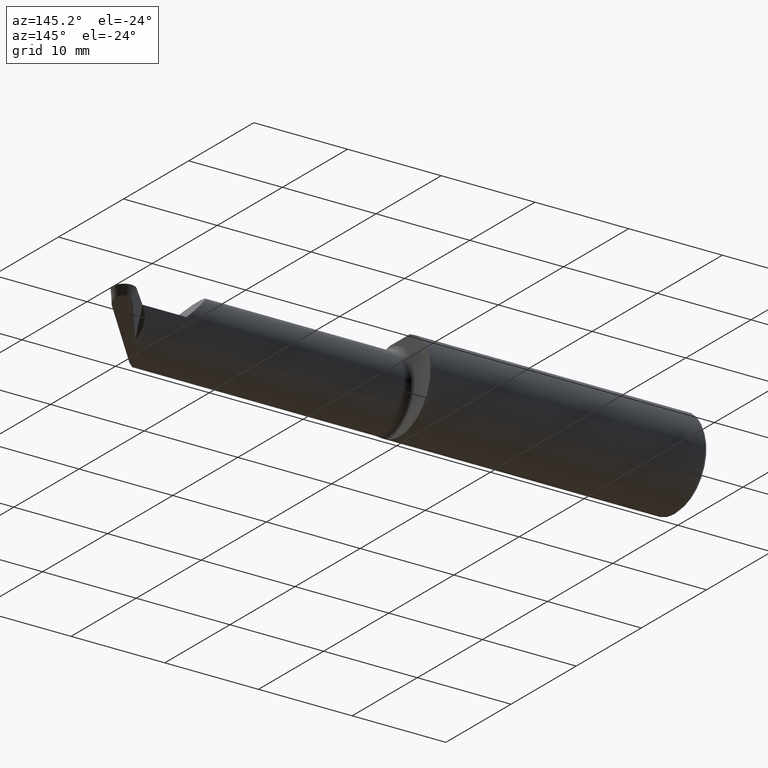
[diagram: clean part render]
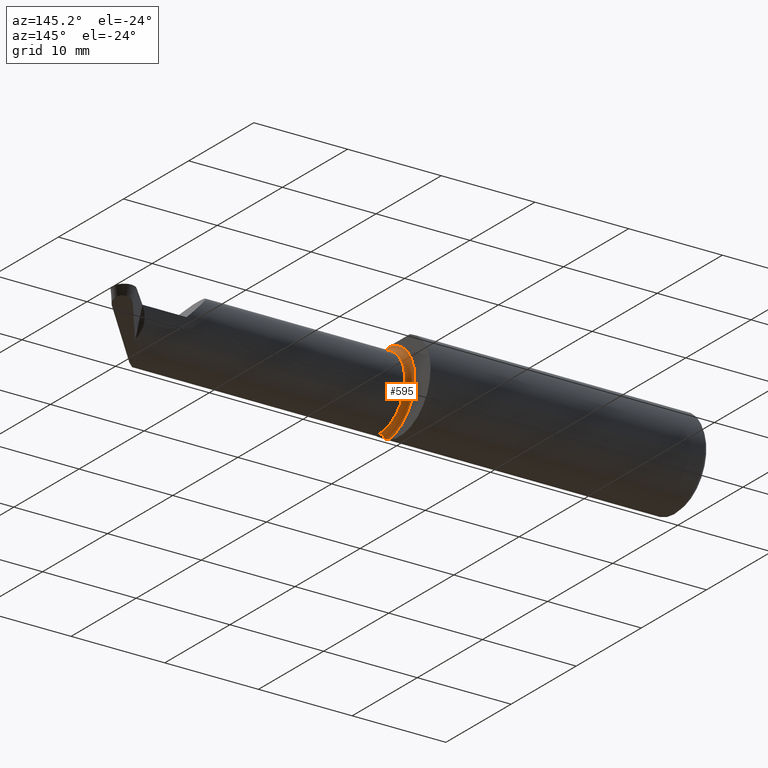
[diagram: same view with one face highlighted and labeled with its STEP entity id]
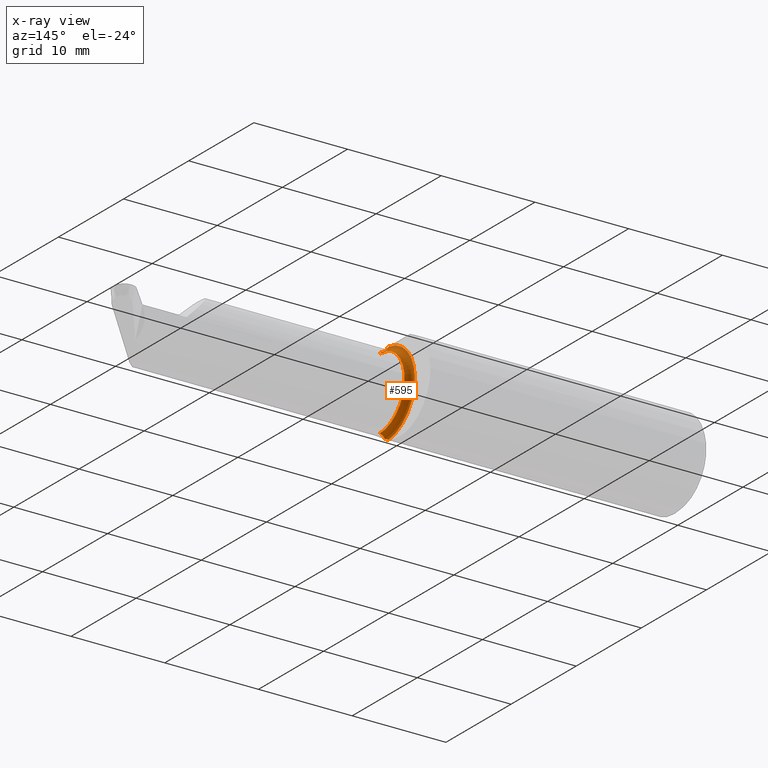
[diagram: x-ray of the same camera — body ghosted, the highlighted face saturated]
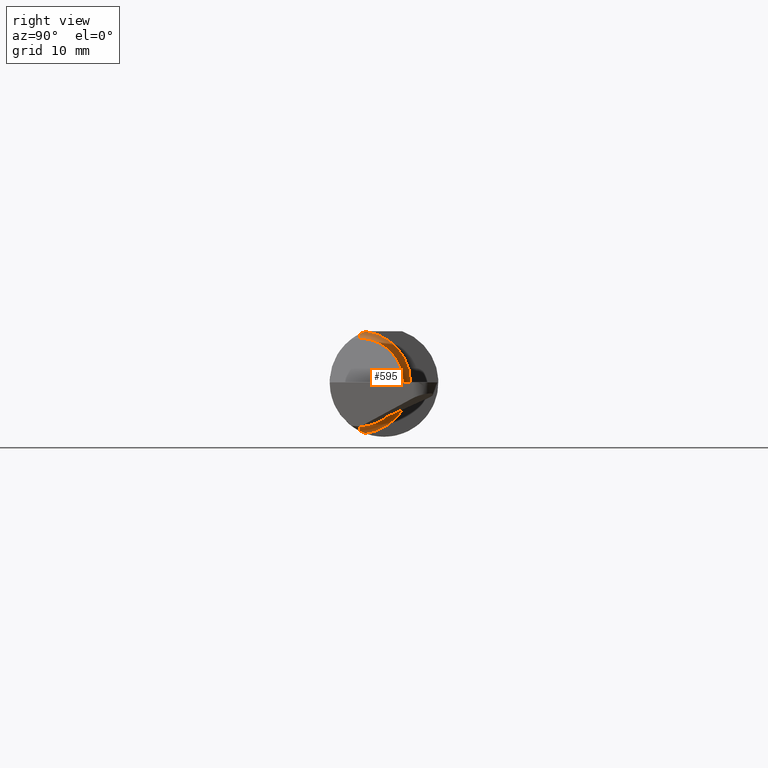
[diagram: same view with one face highlighted and labeled with its STEP entity id]
A machine part, auxiliary view. The second image highlights one B-rep face of the part: STEP entity #595.
The next image is the same camera in x-ray: the body ghosted, the highlighted face saturated — about 0% of this face is hidden behind the body in this view.
A second angle (right view) of the same face is appended — the face is thin or edge-on in the first view.
In plain terms, the highlighted toroidal blend (fillet) surface has major radius 4.4958 mm and minor (blend) radius 0.635 mm.
Its self-contained STEP definition (entity closure, byte-faithful):
#42 = CARTESIAN_POINT ( 'NONE',  ( 1.169680673000416116, -0.07878962450278861884, -0.1701367906434538557 ) ) ;
#71 = EDGE_CURVE ( 'NONE', #81, #769, #550, .T. ) ;
#81 = VERTEX_POINT ( 'NONE', #182 ) ;
#103 = VERTEX_POINT ( 'NONE', #620 ) ;
#106 = AXIS2_PLACEMENT_3D ( 'NONE', #646, #265, #451 ) ;
#153 = ORIENTED_EDGE ( 'NONE', *, *, #563, .T. ) ;
#161 = DIRECTION ( 'NONE',  ( 0.000000000000000000, 0.000000000000000000, -1.000000000000000000 ) ) ;
#167 = DIRECTION ( 'NONE',  ( -1.000000000000000000, -0.000000000000000000, -0.000000000000000000 ) ) ;
#176 = DIRECTION ( 'NONE',  ( -0.000000000000000000, 1.000000000000000000, 1.224646799147353207E-16 ) ) ;
#180 = CARTESIAN_POINT ( 'NONE',  ( 1.169000000000000039, -0.06476652021089757127, -0.1757990908957477727 ) ) ;
#182 = CARTESIAN_POINT ( 'NONE',  ( 1.171184626225752590, -0.08534999999999996756, -0.1667794951425384531 ) ) ;
#186 = ORIENTED_EDGE ( 'NONE', *, *, #449, .T. ) ;
#193 = AXIS2_PLACEMENT_3D ( 'NONE', #342, #233, #732 ) ;
#194 = AXIS2_PLACEMENT_3D ( 'NONE', #372, #176, #685 ) ;
#213 = B_SPLINE_CURVE_WITH_KNOTS ( 'NONE', 3,
 ( #572, #578, #770, #336 ),
 .UNSPECIFIED., .F., .F.,
 ( 4, 4 ),
 ( 4.102419206629668344E-05, 0.0006141256517407879447 ),
 .UNSPECIFIED. ) ;
#228 = B_SPLINE_CURVE_WITH_KNOTS ( 'NONE', 3,
 ( #733, #42, #305, #741 ),
 .UNSPECIFIED., .F., .F.,
 ( 4, 4 ),
 ( 0.001081723733566378361, 0.001661700673542926190 ),
 .UNSPECIFIED. ) ;
#233 = DIRECTION ( 'NONE',  ( -1.000000000000000000, -0.000000000000000000, -0.000000000000000000 ) ) ;
#265 = DIRECTION ( 'NONE',  ( -1.000000000000000000, -0.000000000000000000, -0.000000000000000000 ) ) ;
#268 = VERTEX_POINT ( 'NONE', #658 ) ;
#300 = CARTESIAN_POINT ( 'NONE',  ( 1.193999999999999950, -0.08534999999999996756, -0.1519999999999993856 ) ) ;
#304 = CARTESIAN_POINT ( 'NONE',  ( 1.193999999999999950, -0.08534999999999996756, 0.1769999999999993801 ) ) ;
#305 = CARTESIAN_POINT ( 'NONE',  ( 1.169000000000000039, -0.07189143372580585056, -0.1731741862229593809 ) ) ;
#324 = ORIENTED_EDGE ( 'NONE', *, *, #689, .T. ) ;
#336 = CARTESIAN_POINT ( 'NONE',  ( 1.171184626225752590, -0.08534999999999996756, 0.1667794951425384253 ) ) ;
#340 = DIRECTION ( 'NONE',  ( 0.000000000000000000, 0.000000000000000000, 1.000000000000000000 ) ) ;
#342 = CARTESIAN_POINT ( 'NONE',  ( 1.169000000000000039, -0.08534999999999998144, 0.000000000000000000 ) ) ;
#367 = CIRCLE ( 'NONE', #797, 0.02500000000000000486 ) ;
#372 = CARTESIAN_POINT ( 'NONE',  ( 1.193999999999999950, -0.08534999999999995368, -0.1769999999999993801 ) ) ;
#438 = CIRCLE ( 'NONE', #193, 0.1769999999999993801 ) ;
#445 = VERTEX_POINT ( 'NONE', #180 ) ;
#449 = EDGE_CURVE ( 'NONE', #81, #445, #228, .T. ) ;
#451 = DIRECTION ( 'NONE',  ( 0.000000000000000000, 0.000000000000000000, 1.000000000000000000 ) ) ;
#471 = DIRECTION ( 'NONE',  ( 0.000000000000000000, -1.000000000000000000, 0.000000000000000000 ) ) ;
#520 = AXIS2_PLACEMENT_3D ( 'NONE', #720, #167, #340 ) ;
#522 = ORIENTED_EDGE ( 'NONE', *, *, #71, .F. ) ;
#550 = CIRCLE ( 'NONE', #194, 0.02500000000000000486 ) ;
#563 = EDGE_CURVE ( 'NONE', #268, #778, #213, .T. ) ;
#571 = CIRCLE ( 'NONE', #520, 0.1519999999999993856 ) ;
#572 = CARTESIAN_POINT ( 'NONE',  ( 1.169000000000000039, -0.06476652021089757127, 0.1757990908957477727 ) ) ;
#578 = CARTESIAN_POINT ( 'NONE',  ( 1.168999999999999817, -0.07190536322760539278, 0.1731690544253190744 ) ) ;
#595 = ADVANCED_FACE ( 'NONE', ( #698 ), #672, .F. ) ;
#620 = CARTESIAN_POINT ( 'NONE',  ( 1.193999999999999950, -0.08534999999999998144, 0.1519999999999993856 ) ) ;
#646 = CARTESIAN_POINT ( 'NONE',  ( 1.193999999999999950, -0.08534999999999996756, 0.000000000000000000 ) ) ;
#657 = EDGE_CURVE ( 'NONE', #778, #103, #367, .T. ) ;
#658 = CARTESIAN_POINT ( 'NONE',  ( 1.169000000000000039, -0.06476652021089757127, 0.1757990908957477727 ) ) ;
#669 = ORIENTED_EDGE ( 'NONE', *, *, #657, .T. ) ;
#672 = TOROIDAL_SURFACE ( 'NONE', #106, 0.1769999999999993801, 0.02500000000000000486 ) ;
#685 = DIRECTION ( 'NONE',  ( 0.000000000000000000, 0.000000000000000000, 1.000000000000000000 ) ) ;
#689 = EDGE_CURVE ( 'NONE', #103, #769, #571, .T. ) ;
#698 = FACE_OUTER_BOUND ( 'NONE', #817, .T. ) ;
#719 = ORIENTED_EDGE ( 'NONE', *, *, #818, .F. ) ;
#720 = CARTESIAN_POINT ( 'NONE',  ( 1.193999999999999950, -0.08534999999999998144, 0.000000000000000000 ) ) ;
#732 = DIRECTION ( 'NONE',  ( 0.000000000000000000, 0.000000000000000000, 1.000000000000000000 ) ) ;
#733 = CARTESIAN_POINT ( 'NONE',  ( 1.171184626225752590, -0.08534999999999996756, -0.1667794951425384531 ) ) ;
#737 = CARTESIAN_POINT ( 'NONE',  ( 1.171184626225752590, -0.08534999999999996756, 0.1667794951425384253 ) ) ;
#741 = CARTESIAN_POINT ( 'NONE',  ( 1.169000000000000039, -0.06476652021089757127, -0.1757990908957477727 ) ) ;
#769 = VERTEX_POINT ( 'NONE', #300 ) ;
#770 = CARTESIAN_POINT ( 'NONE',  ( 1.169675599206764227, -0.07876749217114990820, 0.1701481169429114038 ) ) ;
#778 = VERTEX_POINT ( 'NONE', #737 ) ;
#797 = AXIS2_PLACEMENT_3D ( 'NONE', #304, #471, #161 ) ;
#817 = EDGE_LOOP ( 'NONE', ( #522, #186, #719, #153, #669, #324 ) ) ;
#818 = EDGE_CURVE ( 'NONE', #268, #445, #438, .T. ) ;